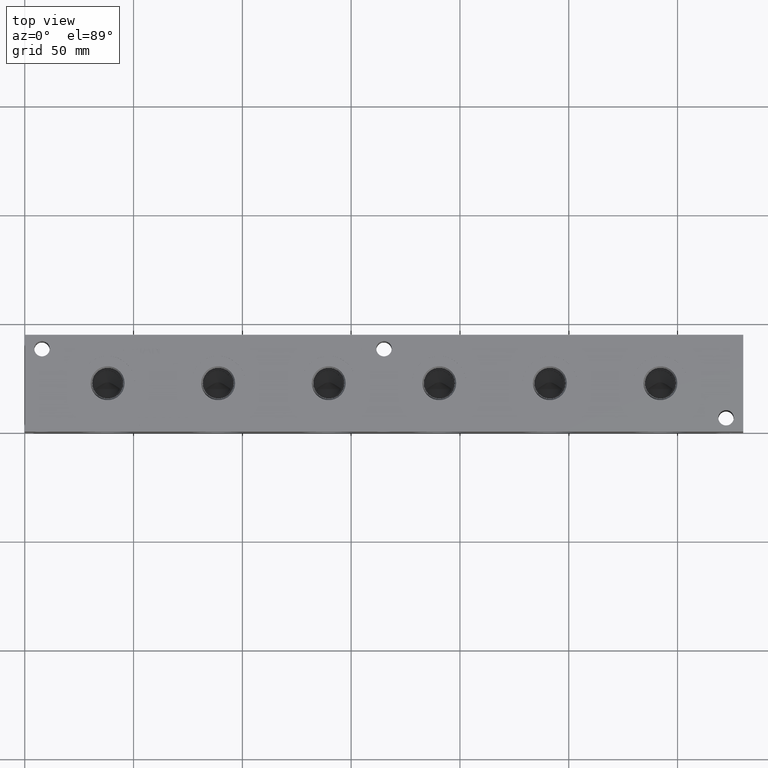
[diagram: clean part render]
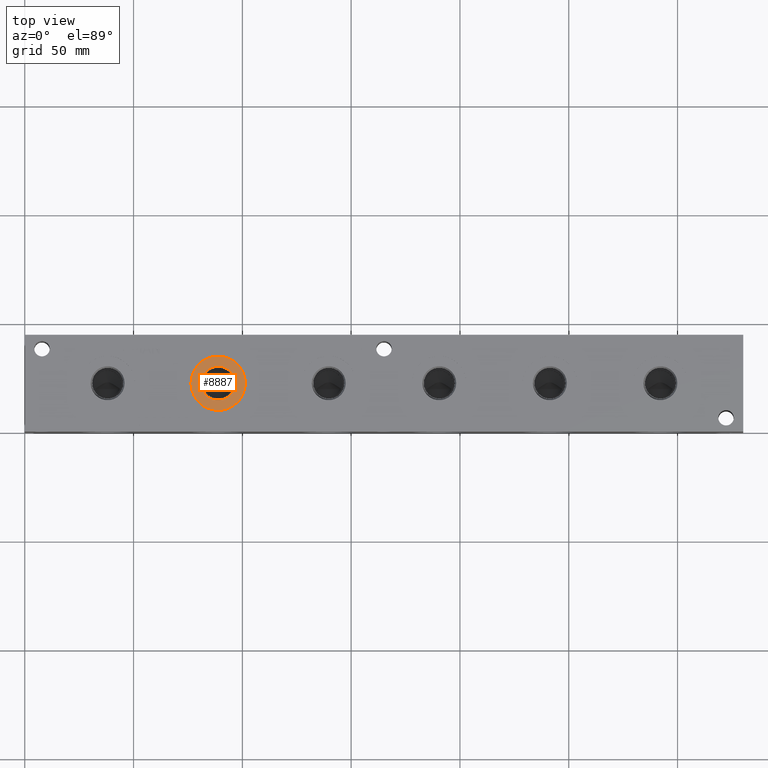
[diagram: same view with one face highlighted and labeled with its STEP entity id]
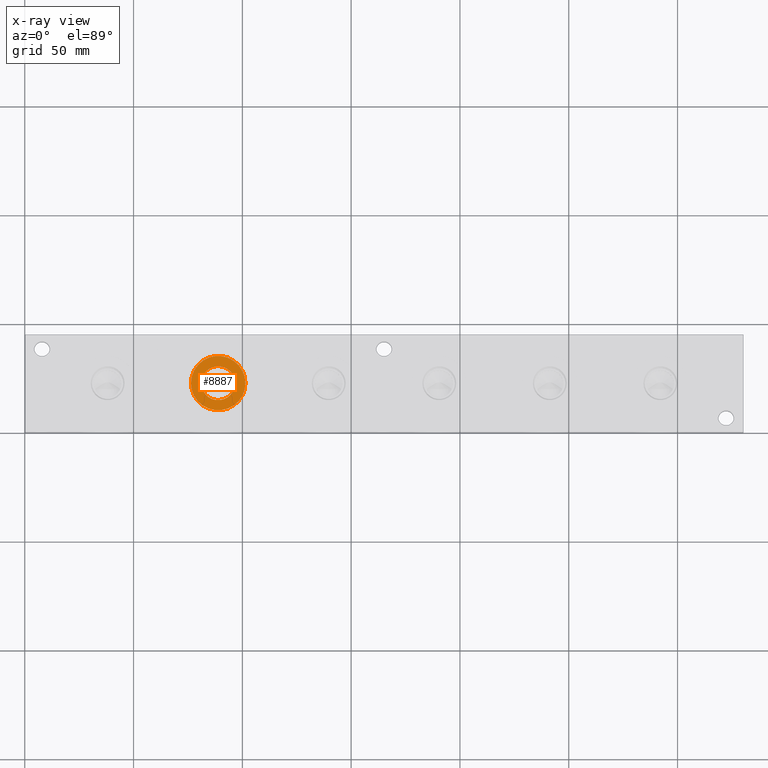
[diagram: x-ray of the same camera — body ghosted, the highlighted face saturated]
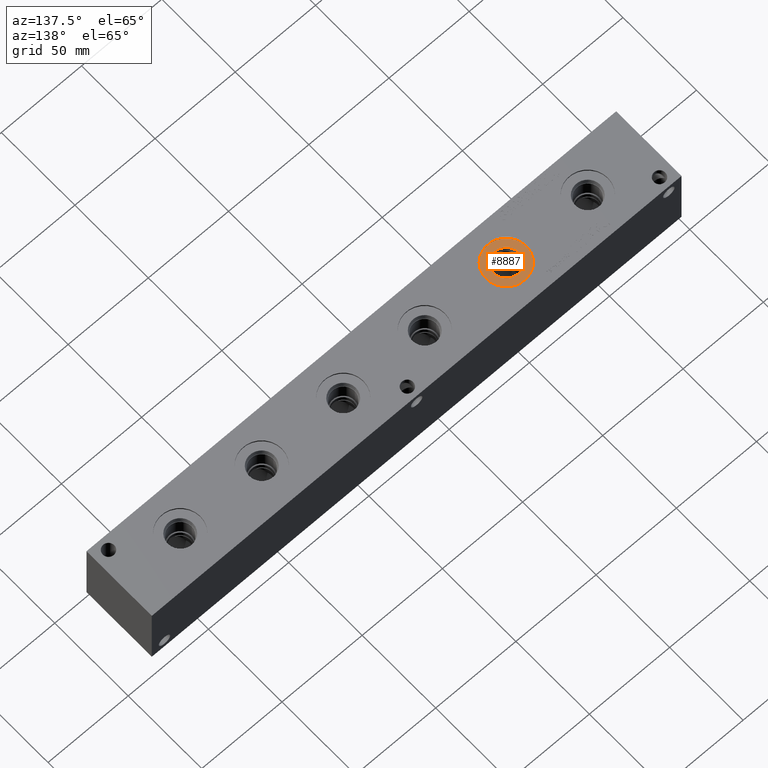
[diagram: same view with one face highlighted and labeled with its STEP entity id]
A machine part, top view. The second image highlights one B-rep face of the part: STEP entity #8887.
The next image is the same camera in x-ray: the body ghosted, the highlighted face saturated — about 0% of this face is hidden behind the body in this view.
A second angle (auxiliary view) of the same face is appended — the face is thin or edge-on in the first view.
In plain terms, the highlighted planar face has unit normal (0, 0, -1).
Its self-contained STEP definition (entity closure, byte-faithful):
#328=CIRCLE('',#9418,12.5095);
#329=CIRCLE('',#9419,12.5095);
#330=CIRCLE('',#9421,7.79780000000001);
#331=CIRCLE('',#9422,7.79780000000001);
#449=FACE_BOUND('',#1837,.T.);
#1313=FACE_OUTER_BOUND('',#1836,.T.);
#1836=EDGE_LOOP('',(#7626,#7627));
#1837=EDGE_LOOP('',(#7628,#7629));
#4081=VERTEX_POINT('',#15610);
#4082=VERTEX_POINT('',#15612);
#4083=VERTEX_POINT('',#15616);
#4084=VERTEX_POINT('',#15617);
#5288=EDGE_CURVE('',#4081,#4082,#328,.T.);
#5289=EDGE_CURVE('',#4082,#4081,#329,.T.);
#5290=EDGE_CURVE('',#4083,#4084,#330,.T.);
#5291=EDGE_CURVE('',#4084,#4083,#331,.T.);
#7626=ORIENTED_EDGE('',*,*,#5289,.F.);
#7627=ORIENTED_EDGE('',*,*,#5288,.F.);
#7628=ORIENTED_EDGE('',*,*,#5290,.T.);
#7629=ORIENTED_EDGE('',*,*,#5291,.T.);
#8147=PLANE('',#9420);
#8887=ADVANCED_FACE('',(#1313,#449),#8147,.F.);
#9418=AXIS2_PLACEMENT_3D('',#15613,#11137,#11138);
#9419=AXIS2_PLACEMENT_3D('',#15614,#11139,#11140);
#9420=AXIS2_PLACEMENT_3D('',#15615,#11141,#11142);
#9421=AXIS2_PLACEMENT_3D('',#15618,#11143,#11144);
#9422=AXIS2_PLACEMENT_3D('',#15619,#11145,#11146);
#11137=DIRECTION('center_axis',(0.,0.,-1.));
#11138=DIRECTION('ref_axis',(1.,0.,0.));
#11139=DIRECTION('center_axis',(0.,0.,-1.));
#11140=DIRECTION('ref_axis',(1.,0.,0.));
#11141=DIRECTION('center_axis',(0.,0.,-1.));
#11142=DIRECTION('ref_axis',(-1.,0.,0.));
#11143=DIRECTION('center_axis',(0.,0.,-1.));
#11144=DIRECTION('ref_axis',(1.,0.,0.));
#11145=DIRECTION('center_axis',(0.,0.,-1.));
#11146=DIRECTION('ref_axis',(1.,0.,0.));
#15610=CARTESIAN_POINT('',(76.3905,22.225,43.6626));
#15612=CARTESIAN_POINT('',(101.4095,22.225,43.6626));
#15613=CARTESIAN_POINT('Origin',(88.9,22.225,43.6626));
#15614=CARTESIAN_POINT('Origin',(88.9,22.225,43.6626));
#15615=CARTESIAN_POINT('Origin',(96.6978,22.225,43.6626));
#15616=CARTESIAN_POINT('',(96.6978,22.225,43.6626));
#15617=CARTESIAN_POINT('',(81.1022,22.225,43.6626));
#15618=CARTESIAN_POINT('Origin',(88.9,22.225,43.6626));
#15619=CARTESIAN_POINT('Origin',(88.9,22.225,43.6626));